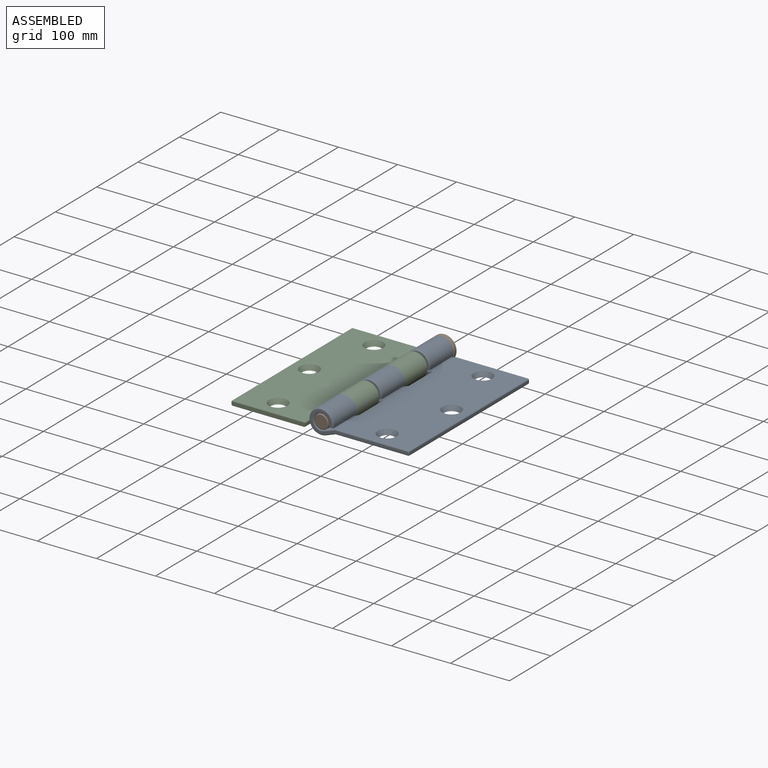
[diagram: assembled view]
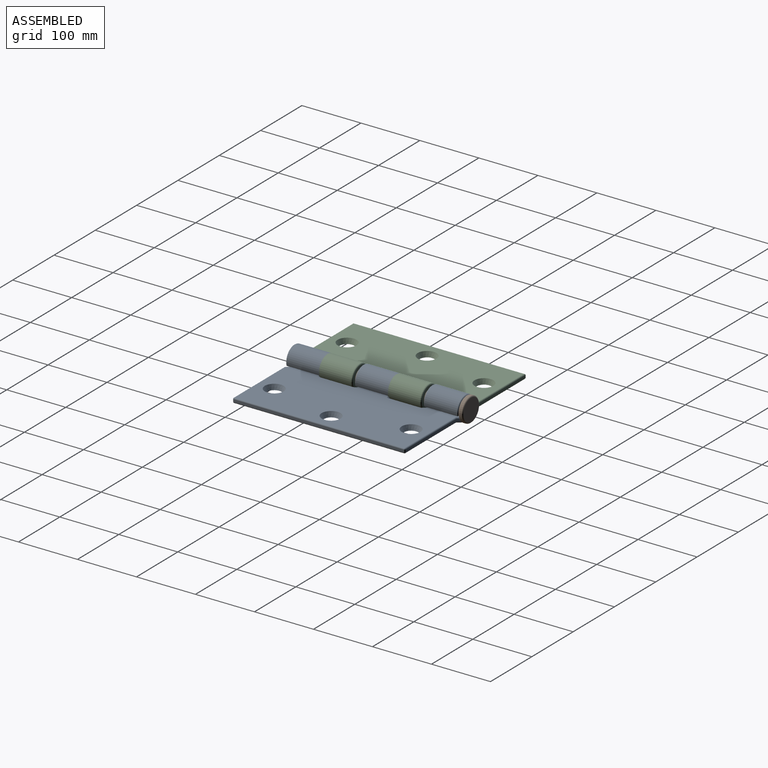
[diagram: assembled view, second angle]
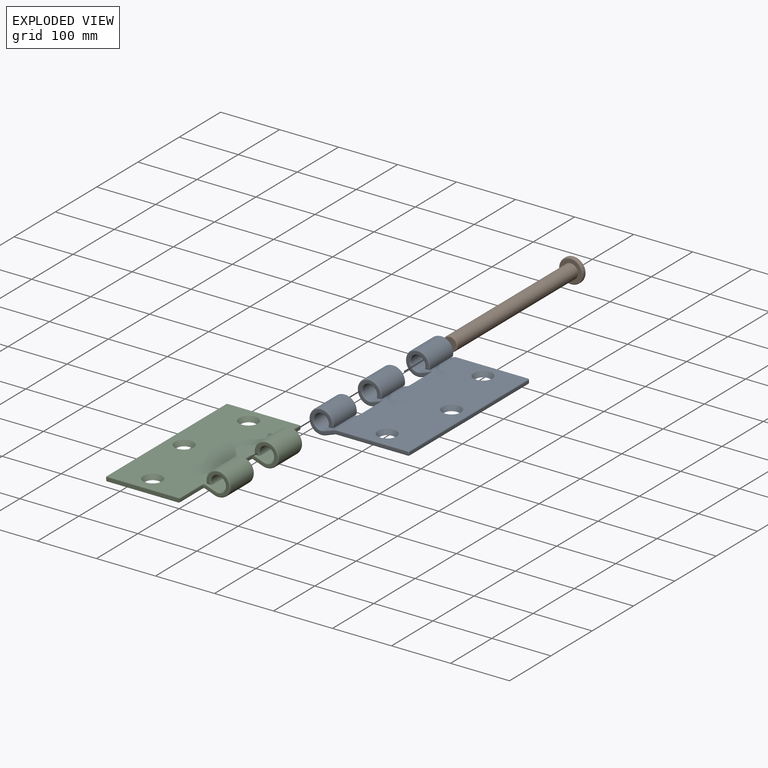
[diagram: exploded view]
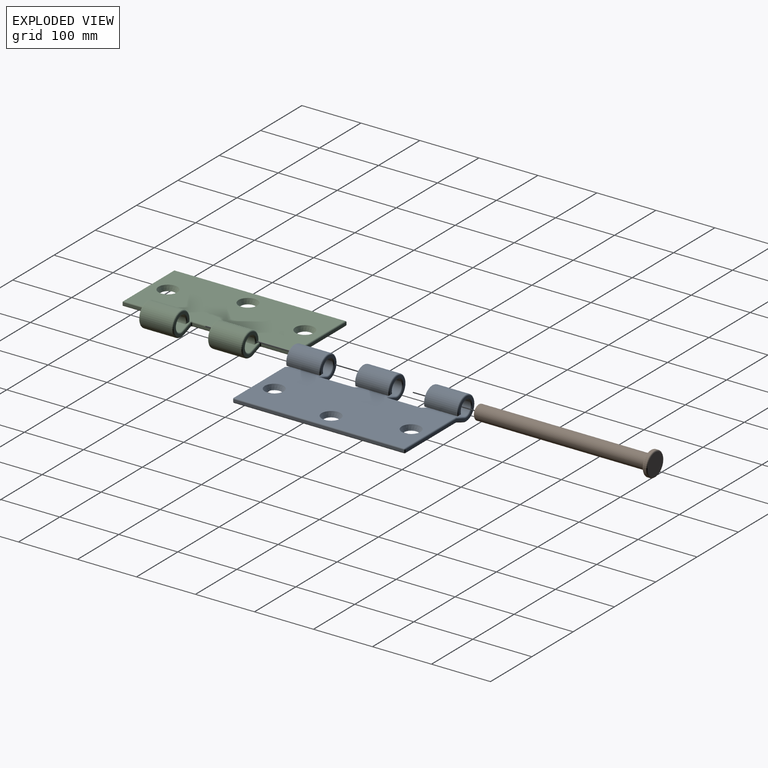
[diagram: exploded view, second angle]
ASSEMBLY  parts=3 mates=2
PART A: 95 faces, bbox 171.6x292.4x44.8 mm
  f0: plane 55.23x16.89mm, normal (0.35,0,-0.94), area 979.8mm2, adj f2,f6,f48,f50,f67,f69
  f1: plane 57.36x19.94mm, normal (-0.32,0,0.95), area 1149.3mm2, adj f10,f13,f36,f38,f40,f57,f59
  f2: plane 288.45x123.49mm, normal (0,0,-1), area 33934.5mm2, adj f0,f3,f4,f20,f21,f22,f47,f49
  f3: plane 54.55x16.89mm, normal (0.35,0,-0.94), area 979.3mm2, adj f2,f5,f45,f47,f77
  f4: plane 55.08x16.89mm, normal (0.35,0,-0.94), area 979.7mm2, adj f2,f15,f66,f68,f87
  f5: cylinder r=20.5mm len=54.4mm, axis (0,1,0), area 5924.3mm2, adj f3,f7,f43,f75
  f6: cylinder r=20.5mm len=54.4mm, axis (0,1,0), area 5924.3mm2, adj f0,f8,f46,f65
  f7: plane 54.4x8.42mm, normal (0,0,-1), area 458.3mm2, adj f5,f9,f41,f73
  f8: plane 54.4x8.42mm, normal (0,0,-1), area 458.3mm2, adj f6,f10,f44,f63
  f9: cylinder r=12.5mm len=54.4mm, axis (0,1,0), area 3708.6mm2, adj f7,f11,f39,f74
  f10: cylinder r=12.5mm len=54.4mm, axis (0,1,0), area 3708.6mm2, adj f1,f8,f42,f61
  f11: plane 55.16x19.94mm, normal (-0.32,0,0.95), area 1146.9mm2, adj f9,f13,f33,f35,f37,f76
  f12: plane 56.6x19.94mm, normal (-0.32,0,0.95), area 1148.6mm2, adj f13,f17,f56,f58,f84
  f13: plane 288.06x123.06mm, normal (0,0,1), area 32879mm2, adj f1,f11,f12,f20,f21,f22,f33,f34
  f14: plane 288x4mm, normal (1,0,0), area 1152mm2, adj f81,f89,f90,f94
  f15: cylinder r=20.5mm len=54.4mm, axis (0,1,0), area 5924.3mm2, adj f4,f16,f64,f83
  f16: plane 54.4x8.42mm, normal (0,0,-1), area 458.3mm2, adj f15,f17,f62,f78
  f17: cylinder r=12.5mm len=54.4mm, axis (0,1,0), area 3708.6mm2, adj f12,f16,f60,f79
  f18: plane 165.48x37mm, normal (0,-1,0), area 911.5mm2, adj f78,f79,f83,f84,f87,f88,f91,f94
  f19: plane 165.48x37mm, normal (0,1,0), area 911.5mm2, adj f73,f74,f75,f76,f77,f80,f81,f82
  f20: cone r=12mm half-angle=26.6deg, axis (0,0,1), area 786.8mm2, adj f2,f13
  f21: cone r=12mm half-angle=26.6deg, axis (0,0,1), area 786.8mm2, adj f2,f13
  f22: cone r=12mm half-angle=26.6deg, axis (0,0,1), area 786.8mm2, adj f2,f13
  f23: plane 54.4x4mm, normal (-1,0,0), area 217.6mm2, adj f31,f32,f34,f51
  f24: plane 40.71x37mm, normal (0,-1,0), area 412.7mm2, adj f31,f37,f39,f41,f43,f45
  f25: plane 40.71x37mm, normal (0,1,0), area 412.7mm2, adj f32,f40,f42,f44,f46,f48
  f26: plane 54.4x4.63mm, normal (-1,0,0), area 251.8mm2, adj f29,f30,f53,f72
  f27: plane 39.56x37mm, normal (0,-1,0), area 408.4mm2, adj f29,f59,f61,f63,f65,f67
  f28: plane 39.56x37mm, normal (0,1,0), area 408.4mm2, adj f30,f58,f60,f62,f64,f66
  f29: cylinder r=2mm len=5.26mm, axis (0,0,-1), area 12.7mm2, adj f26,f27,f55,f57,f69,f71
  f30: cylinder r=2mm len=5.26mm, axis (0,0,1), area 12.7mm2, adj f26,f28,f54,f56,f68,f70
  f31: cylinder r=2mm len=4.52mm, axis (0,0,-1), area 12.4mm2, adj f23,f24,f33,f35,f47,f49
  f32: cylinder r=2mm len=4.52mm, axis (0,0,1), area 12.4mm2, adj f23,f25,f36,f38,f50,f52
  f33: torus R=4mm, axis (0,0,-1), area 9.3mm2, adj f11,f13,f31,f34,f35
  f34: cylinder r=2mm len=54.4mm, axis (0,-1,0), area 170.9mm2, adj f13,f23,f33,f36
  f35: bspline ~2.7x2.38mm, area 5.5mm2, adj f11,f31,f33,f37
  f36: torus R=4mm, axis (0,0,-1), area 9.3mm2, adj f1,f13,f32,f34,f38
  f37: cylinder r=2mm len=18.16mm, axis (0.95,0,0.32), area 58.1mm2, adj f11,f24,f35,f39
  f38: bspline ~2.7x2.38mm, area 5.5mm2, adj f1,f32,f36,f40
  f39: torus R=14.5mm, axis (0,-1,0), area 222.3mm2, adj f9,f24,f37,f41
  f40: cylinder r=2mm len=18.16mm, axis (-0.95,0,-0.32), area 58.1mm2, adj f1,f25,f38,f42
  f41: cylinder r=2mm len=8.42mm, axis (-1,0,0), area 19.6mm2, adj f7,f24,f39,f43
  f42: torus R=14.5mm, axis (0,-1,0), area 222.3mm2, adj f10,f25,f40,f44
  f43: torus R=18.5mm, axis (0,-1,0), area 327.5mm2, adj f5,f24,f41,f45
  f44: cylinder r=2mm len=8.42mm, axis (1,0,0), area 19.6mm2, adj f8,f25,f42,f46
  f45: cylinder r=2mm len=16.49mm, axis (-0.94,0,-0.35), area 52.9mm2, adj f3,f24,f43,f47
  f46: torus R=18.5mm, axis (0,-1,0), area 327.5mm2, adj f6,f25,f44,f48
  f47: bspline ~2.4x2.13mm, area 2.8mm2, adj f2,f3,f31,f45,f49
  f48: cylinder r=2mm len=16.49mm, axis (0.94,0,0.35), area 52.9mm2, adj f0,f25,f46,f50
  f49: torus R=4mm, axis (0,0,1), area 9.7mm2, adj f2,f31,f47,f51
  f50: bspline ~2.4x2.13mm, area 2.8mm2, adj f0,f2,f32,f48,f52
  f51: cylinder r=2mm len=54.4mm, axis (0,1,0), area 170.9mm2, adj f2,f23,f49,f52
  f52: torus R=4mm, axis (0,0,1), area 9.7mm2, adj f2,f32,f50,f51
  f53: cylinder r=2mm len=54.4mm, axis (0,-1,0), area 109.1mm2, adj f13,f26,f54,f55
  f54: bspline ~2.37x1.92mm, area 2.8mm2, adj f13,f30,f53,f56
  f55: bspline ~2.37x1.92mm, area 2.8mm2, adj f13,f29,f53,f57
  f56: bspline ~3.57x3.12mm, area 9.3mm2, adj f12,f30,f54,f58
  f57: bspline ~3.94x3.32mm, area 9.3mm2, adj f1,f29,f55,f59
  f58: cylinder r=2mm len=17.01mm, axis (-0.95,0,-0.32), area 54.3mm2, adj f12,f28,f56,f60
  f59: cylinder r=2mm len=17.01mm, axis (0.95,0,0.32), area 54.3mm2, adj f1,f27,f57,f61
  f60: torus R=14.5mm, axis (0,-1,0), area 222.3mm2, adj f17,f28,f58,f62
  f61: torus R=14.5mm, axis (0,-1,0), area 222.3mm2, adj f10,f27,f59,f63
  f62: cylinder r=2mm len=8.42mm, axis (1,0,0), area 19.6mm2, adj f16,f28,f60,f64
  f63: cylinder r=2mm len=8.42mm, axis (-1,0,0), area 19.6mm2, adj f8,f27,f61,f65
  f64: torus R=18.5mm, axis (0,-1,0), area 327.5mm2, adj f15,f28,f62,f66
  f65: torus R=18.5mm, axis (0,-1,0), area 327.5mm2, adj f6,f27,f63,f67
  f66: cylinder r=2mm len=15.35mm, axis (0.94,0,0.35), area 49.1mm2, adj f4,f28,f64,f68
  f67: cylinder r=2mm len=15.35mm, axis (-0.94,0,-0.35), area 49.1mm2, adj f0,f27,f65,f69
  f68: bspline ~3.61x3.08mm, area 5.9mm2, adj f4,f30,f66,f70
  f69: bspline ~3.61x3.08mm, area 5.9mm2, adj f0,f29,f67,f71
  f70: bspline ~3.87x2.48mm, area 5.3mm2, adj f2,f30,f68,f72
  f71: bspline ~3.87x2.48mm, area 5.3mm2, adj f2,f29,f69,f72
  f72: cylinder r=2mm len=54.4mm, axis (0,1,0), area 109.1mm2, adj f2,f26,f70,f71
  f73: cylinder r=2mm len=8.42mm, axis (-1,0,0), area 19.6mm2, adj f7,f19,f74,f75
  f74: torus R=14.5mm, axis (0,-1,0), area 222.3mm2, adj f9,f19,f73,f76
  f75: torus R=18.5mm, axis (0,-1,0), area 327.5mm2, adj f5,f19,f73,f77
  f76: cylinder r=2mm len=20.58mm, axis (0.95,0,0.32), area 65.7mm2, adj f11,f19,f74,f80
  f77: cylinder r=2mm len=17.91mm, axis (-0.94,0,-0.35), area 57.1mm2, adj f3,f19,f75,f82
  f78: cylinder r=2mm len=8.42mm, axis (1,0,0), area 19.6mm2, adj f16,f18,f79,f83
  f79: torus R=14.5mm, axis (0,-1,0), area 222.3mm2, adj f17,f18,f78,f84
  f80: cylinder r=2mm len=123mm, axis (1,0,0), area 385.9mm2, adj f13,f19,f76,f85
  f81: cylinder r=2mm len=4mm, axis (0,0,-1), area 12.6mm2, adj f14,f19,f85,f86
  f82: cylinder r=2mm len=123.36mm, axis (-1,0,0), area 387mm2, adj f2,f19,f77,f86
  f83: torus R=18.5mm, axis (0,-1,0), area 327.5mm2, adj f15,f18,f78,f87
  f84: cylinder r=2mm len=20.58mm, axis (-0.95,0,-0.32), area 65.7mm2, adj f12,f18,f79,f88
  f85: sphere r=2mm, area 6.3mm2, adj f80,f81,f89
  f86: sphere r=2mm, area 4mm2, adj f81,f82,f90
  f87: cylinder r=2mm len=17.91mm, axis (0.94,0,0.35), area 57.1mm2, adj f4,f18,f83,f91
  f88: cylinder r=2mm len=123mm, axis (-1,0,0), area 385.9mm2, adj f13,f18,f84,f92
  f89: cylinder r=2mm len=288mm, axis (0,1,0), area 904.8mm2, adj f13,f14,f85,f92
  f90: cylinder r=2mm len=288mm, axis (0,1,0), area 904.8mm2, adj f2,f14,f86,f93
  f91: cylinder r=2mm len=123.36mm, axis (1,0,0), area 387mm2, adj f2,f18,f87,f93
  f92: sphere r=2mm, area 6.3mm2, adj f88,f89,f94
  f93: sphere r=2mm, area 6.3mm2, adj f90,f91,f94
  f94: cylinder r=2mm len=4mm, axis (0,0,1), area 12.6mm2, adj f14,f18,f92,f93
PART B: 8 faces, bbox 44.4x300x44.4 mm
  f0: cylinder r=12.25mm len=290mm, axis (0,1,0), area 22321mm2, adj f4,f7
  f1: plane 20.5x20.5mm, normal (0,-1,0), area 330.1mm2, adj f7
  f2: cylinder r=20.5mm len=41mm, axis (0,-1,0), area 515.2mm2, adj f5,f6
  f3: plane 37x37mm, normal (0,1,0), area 1075.2mm2, adj f6
  f4: plane 37x37mm, normal (0,-1,0), area 603.8mm2, adj f0,f5
  f5: torus R=18.5mm, axis (0,1,0), area 390.3mm2, adj f2,f4
  f6: torus R=18.5mm, axis (0,1,0), area 390.3mm2, adj f2,f3
  f7: torus R=10.25mm, axis (0,1,0), area 227.5mm2, adj f0,f1
PART C: 76 faces, bbox 171.2x292x44.4 mm
  f0: plane 54.84x16.89mm, normal (-0.35,0,-0.94), area 979.4mm2, adj f2,f12,f54,f55,f73,f75
  f1: plane 54.84x16.89mm, normal (-0.35,0,-0.94), area 979.4mm2, adj f3,f12,f31,f32,f66,f68
  f2: cylinder r=20.5mm len=54.4mm, axis (0,1,0), area 5924.3mm2, adj f0,f4,f52,f71
  f3: cylinder r=20.5mm len=54.4mm, axis (0,1,0), area 5924.3mm2, adj f1,f5,f33,f64
  f4: plane 54.4x8.42mm, normal (0,0,-1), area 458.3mm2, adj f2,f6,f50,f69
  f5: plane 54.4x8.42mm, normal (0,0,-1), area 458.3mm2, adj f3,f7,f34,f62
  f6: cylinder r=12.5mm len=54.4mm, axis (0,1,0), area 3708.6mm2, adj f4,f8,f48,f67
  f7: cylinder r=12.5mm len=54.4mm, axis (0,1,0), area 3708.6mm2, adj f5,f9,f35,f60
  f8: plane 56.23x19.94mm, normal (0.32,0,0.95), area 1148mm2, adj f6,f13,f44,f45,f46,f61,f63,f65
  f9: plane 56.23x19.94mm, normal (0.32,0,0.95), area 1148mm2, adj f7,f13,f36,f37,f38,f56,f57,f58
  f10: plane 125x6mm, normal (0,-1,0), area 748.3mm2, adj f11,f12,f19,f29,f40,f47
  f11: plane 292x4mm, normal (-1,0,0), area 1168mm2, adj f10,f14,f41,f47
  f12: plane 290x123.06mm, normal (0,0,-1), area 33962.8mm2, adj f0,f1,f10,f15,f16,f17,f29,f30
  f13: plane 288x123mm, normal (0,0,1), area 32665.2mm2, adj f8,f9,f15,f16,f17,f38,f39,f40
  f14: plane 125x4mm, normal (0,1,0), area 500mm2, adj f11,f24,f42,f49
  f15: cone r=12mm half-angle=26.6deg, axis (0,0,1), area 786.8mm2, adj f12,f13
  f16: cone r=12mm half-angle=26.6deg, axis (0,0,1), area 786.8mm2, adj f12,f13
  f17: cone r=12mm half-angle=26.6deg, axis (0,0,1), area 786.8mm2, adj f12,f13
  f18: plane 40.48x37mm, normal (0,-1,0), area 411.9mm2, adj f25,f32,f33,f34,f35,f36
  f19: plane 56.4x4mm, normal (1,0,0), area 225.6mm2, adj f10,f25,f29,f39
  f20: plane 40.48x37mm, normal (0,-1,0), area 411.9mm2, adj f26,f65,f67,f69,f71,f73
  f21: plane 40.48x37mm, normal (0,1,0), area 411.9mm2, adj f27,f58,f60,f62,f64,f66
  f22: plane 54.4x4mm, normal (1,0,0), area 217.6mm2, adj f26,f27,f59,f72
  f23: plane 40.48x37mm, normal (0,1,0), area 411.9mm2, adj f28,f46,f48,f50,f52,f54
  f24: plane 56.4x4mm, normal (1,0,0), area 225.6mm2, adj f14,f28,f43,f51
  f25: cylinder r=2mm len=4.61mm, axis (0,0,-1), area 12.3mm2, adj f18,f19,f30,f31,f37,f38
  f26: cylinder r=2mm len=4.61mm, axis (0,0,-1), area 12.3mm2, adj f20,f22,f61,f63,f74,f75
  f27: cylinder r=2mm len=4.61mm, axis (0,0,1), area 12.3mm2, adj f21,f22,f56,f57,f68,f70
  f28: cylinder r=2mm len=4.61mm, axis (0,0,1), area 12.3mm2, adj f23,f24,f44,f45,f53,f55
  f29: cylinder r=2mm len=56.4mm, axis (0,-1,0), area 177.2mm2, adj f10,f12,f19,f30
  f30: torus R=4mm, axis (0,0,1), area 9.2mm2, adj f12,f25,f29,f31
  f31: bspline ~2.48x2.34mm, area 3.4mm2, adj f1,f12,f25,f30,f32
  f32: cylinder r=2mm len=16.27mm, axis (-0.94,0,0.35), area 52.2mm2, adj f1,f18,f31,f33
  f33: torus R=18.5mm, axis (0,1,0), area 327.5mm2, adj f3,f18,f32,f34
  f34: cylinder r=2mm len=8.42mm, axis (-1,0,0), area 19.6mm2, adj f5,f18,f33,f35
  f35: torus R=14.5mm, axis (0,1,0), area 222.3mm2, adj f7,f18,f34,f36
  f36: cylinder r=2mm len=17.94mm, axis (0.95,0,-0.32), area 57.4mm2, adj f9,f18,f35,f37
  f37: bspline ~2.77x2.55mm, area 6mm2, adj f9,f25,f36,f38
  f38: torus R=4mm, axis (0,0,-1), area 8.7mm2, adj f9,f13,f25,f37,f39
  f39: cylinder r=2mm len=56.4mm, axis (0,-1,0), area 174mm2, adj f13,f19,f38,f40
  f40: cylinder r=2mm len=125mm, axis (1,0,0), area 386.4mm2, adj f10,f13,f39,f41
  f41: cylinder r=2mm len=292mm, axis (0,1,0), area 911.1mm2, adj f11,f13,f40,f42
  f42: cylinder r=2mm len=125mm, axis (-1,0,0), area 386.4mm2, adj f13,f14,f41,f43
  f43: cylinder r=2mm len=56.4mm, axis (0,1,0), area 174mm2, adj f13,f24,f42,f44
  f44: torus R=4mm, axis (0,0,-1), area 8.7mm2, adj f8,f13,f28,f43,f45
  f45: bspline ~3.65x3.14mm, area 6mm2, adj f8,f28,f44,f46
  f46: cylinder r=2mm len=17.94mm, axis (-0.95,0,0.32), area 57.4mm2, adj f8,f23,f45,f48
  f47: cylinder r=2mm len=292mm, axis (0,1,0), area 914.2mm2, adj f10,f11,f12,f49
  f48: torus R=14.5mm, axis (0,1,0), area 222.3mm2, adj f6,f23,f46,f50
  f49: cylinder r=2mm len=125mm, axis (1,0,0), area 386.4mm2, adj f12,f14,f47,f51
  f50: cylinder r=2mm len=8.42mm, axis (1,0,0), area 19.6mm2, adj f4,f23,f48,f52
  f51: cylinder r=2mm len=56.4mm, axis (0,-1,0), area 174mm2, adj f12,f24,f49,f53
  f52: torus R=18.5mm, axis (0,1,0), area 327.5mm2, adj f2,f23,f50,f54
  f53: torus R=4mm, axis (0,0,1), area 9.2mm2, adj f12,f28,f51,f55
  f54: cylinder r=2mm len=16.27mm, axis (0.94,0,-0.35), area 52.2mm2, adj f0,f23,f52,f55
  f55: bspline ~2.48x2.34mm, area 3.4mm2, adj f0,f12,f28,f53,f54
  f56: bspline ~3.65x3.14mm, area 6mm2, adj f9,f27,f57,f58
  f57: torus R=4mm, axis (0,0,-1), area 8.7mm2, adj f9,f13,f27,f56,f59
  f58: cylinder r=2mm len=17.94mm, axis (-0.95,0,0.32), area 57.4mm2, adj f9,f21,f56,f60
  f59: cylinder r=2mm len=54.4mm, axis (0,-1,0), area 170.9mm2, adj f13,f22,f57,f61
  f60: torus R=14.5mm, axis (0,1,0), area 222.3mm2, adj f7,f21,f58,f62
  f61: torus R=4mm, axis (0,0,-1), area 8.7mm2, adj f8,f13,f26,f59,f63
  f62: cylinder r=2mm len=8.42mm, axis (1,0,0), area 19.6mm2, adj f5,f21,f60,f64
  f63: bspline ~3.65x3.14mm, area 6mm2, adj f8,f26,f61,f65
  f64: torus R=18.5mm, axis (0,1,0), area 327.5mm2, adj f3,f21,f62,f66
  f65: cylinder r=2mm len=17.94mm, axis (0.95,0,-0.32), area 57.4mm2, adj f8,f20,f63,f67
  f66: cylinder r=2mm len=16.27mm, axis (0.94,0,-0.35), area 52.2mm2, adj f1,f21,f64,f68
  f67: torus R=14.5mm, axis (0,1,0), area 222.3mm2, adj f6,f20,f65,f69
  f68: bspline ~2.48x2.34mm, area 3.4mm2, adj f1,f12,f27,f66,f70
  f69: cylinder r=2mm len=8.42mm, axis (-1,0,0), area 19.6mm2, adj f4,f20,f67,f71
  f70: torus R=4mm, axis (0,0,1), area 9.2mm2, adj f12,f27,f68,f72
  f71: torus R=18.5mm, axis (0,1,0), area 327.5mm2, adj f2,f20,f69,f73
  f72: cylinder r=2mm len=54.4mm, axis (0,-1,0), area 170.9mm2, adj f12,f22,f70,f74
  f73: cylinder r=2mm len=16.27mm, axis (-0.94,0,0.35), area 52.2mm2, adj f0,f20,f71,f75
  f74: torus R=4mm, axis (0,0,1), area 9.2mm2, adj f12,f26,f72,f75
  f75: bspline ~2.48x2.34mm, area 3.4mm2, adj f0,f12,f26,f73,f74
PLACE A t=(6.23,-8.97,-18.85)mm
PLACE B t=(6.23,-8.97,-18.85)mm
PLACE C t=(7.26,-12.97,-18.85)mm
MATE revolute C.f2 <-> A.f61  axis (0,1,0) through (31.24,-244.57,-13.85)mm
MATE slider B.f0 <-> A.f61  axis (0,-1,0) through (31.24,-300.97,-13.85)mm
